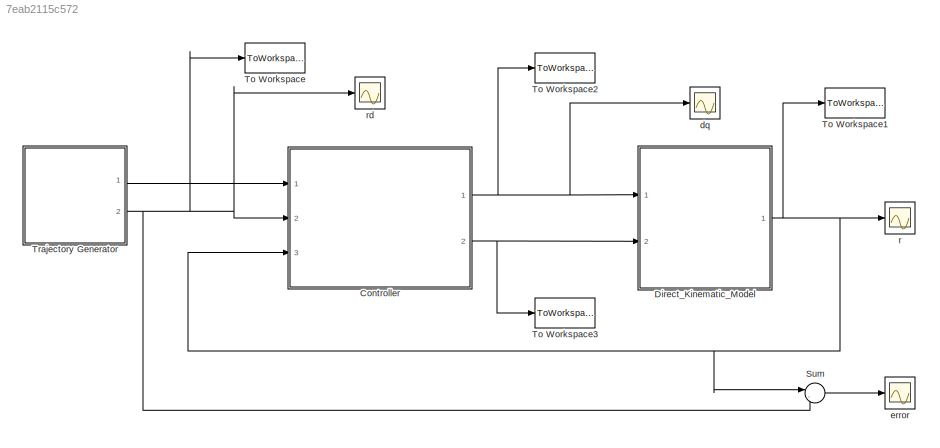
MODEL slx_7eab2115c572
KIND model
CONFIG AbsTol = auto
CONFIG FixedStep = 0.01
CONFIG MaxStep = auto
CONFIG MinStep = auto
CONFIG RelTol = 1e-3
CONFIG SampleTimeConstraint = Unconstrained
CONFIG Solver = ode3
CONFIG SolverMode = Auto
CONFIG SolverName = ode3
CONFIG StartTime = 0.0
CONFIG StopTime = tf
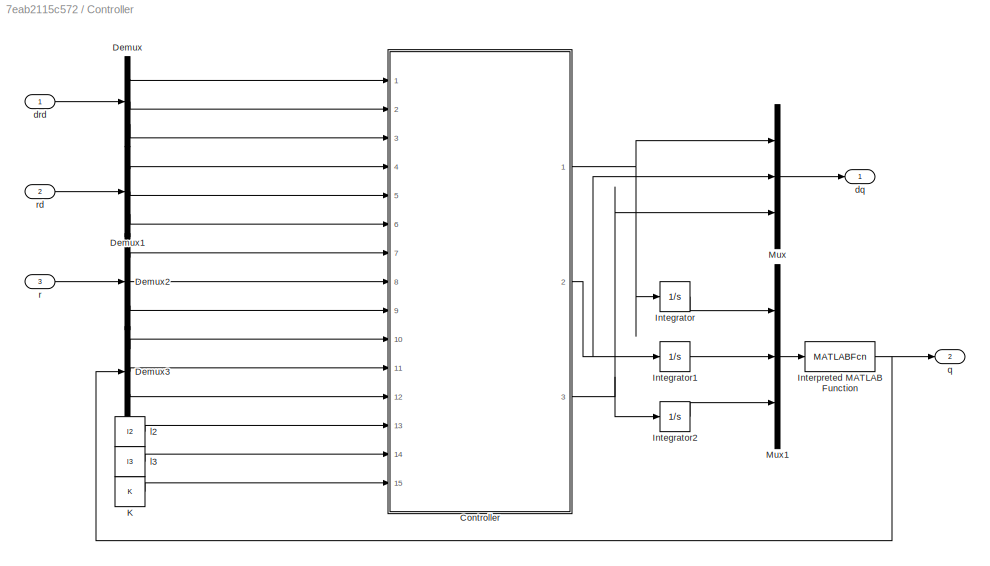
BLOCK [SubSystem] Controller
  Ports = [3, 2]
  RequestExecContextInheritance = off
  Variant = off
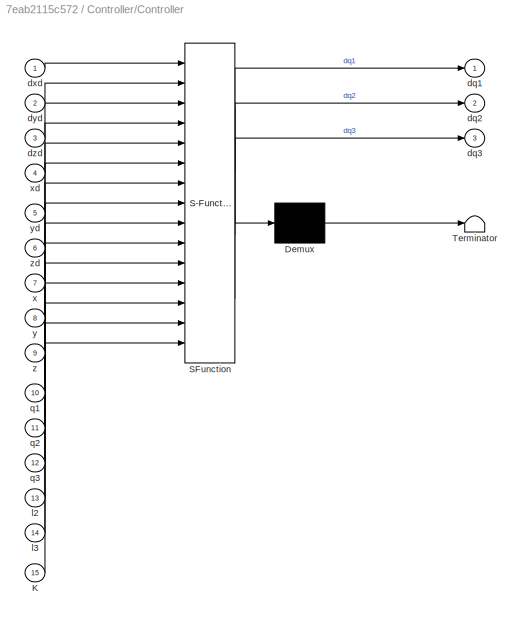
BLOCK [SubSystem] Controller/Controller
  ErrorFcn = Stateflow.Translate.translate
  PermitHierarchicalResolution = ExplicitOnly
  Ports = [15, 3]
  RequestExecContextInheritance = off
  SFBlockType = MATLAB Function
  TreatAsAtomicUnit = on
  Variant = off
BLOCK [Demux] Controller/Controller/ Demux 
  Outputs = 1
  Ports = [1, 1]
BLOCK [S-Function] Controller/Controller/ SFunction 
  EnableBusSupport = on
  FunctionName = sf_sfun
  PortCounts = [15 4]
  Ports = [15, 4]
  SFunctionDeploymentMode = off
  Tag = Stateflow S-Function kinematic_model_control 1
BLOCK [Terminator] Controller/Controller/ Terminator 
BLOCK [Inport] Controller/Controller/K
  IconDisplay = Port number
  Port = 15
BLOCK [Outport] Controller/Controller/dq1
  IconDisplay = Port number
BLOCK [Outport] Controller/Controller/dq2
  IconDisplay = Port number
  Port = 2
BLOCK [Outport] Controller/Controller/dq3
  IconDisplay = Port number
  Port = 3
BLOCK [Inport] Controller/Controller/dxd
  IconDisplay = Port number
BLOCK [Inport] Controller/Controller/dyd
  IconDisplay = Port number
  Port = 2
BLOCK [Inport] Controller/Controller/dzd
  IconDisplay = Port number
  Port = 3
BLOCK [Inport] Controller/Controller/l2
  IconDisplay = Port number
  Port = 13
BLOCK [Inport] Controller/Controller/l3
  IconDisplay = Port number
  Port = 14
BLOCK [Inport] Controller/Controller/q1
  IconDisplay = Port number
  Port = 10
BLOCK [Inport] Controller/Controller/q2
  IconDisplay = Port number
  Port = 11
BLOCK [Inport] Controller/Controller/q3
  IconDisplay = Port number
  Port = 12
BLOCK [Inport] Controller/Controller/x
  IconDisplay = Port number
  Port = 7
BLOCK [Inport] Controller/Controller/xd
  IconDisplay = Port number
  Port = 4
BLOCK [Inport] Controller/Controller/y
  IconDisplay = Port number
  Port = 8
BLOCK [Inport] Controller/Controller/yd
  IconDisplay = Port number
  Port = 5
BLOCK [Inport] Controller/Controller/z
  IconDisplay = Port number
  Port = 9
BLOCK [Inport] Controller/Controller/zd
  IconDisplay = Port number
  Port = 6
BLOCK [Demux] Controller/Demux
  DisplayOption = bar
  Outputs = 3
  Ports = [1, 3]
BLOCK [Demux] Controller/Demux1
  DisplayOption = bar
  Outputs = 3
  Ports = [1, 3]
BLOCK [Demux] Controller/Demux2
  DisplayOption = bar
  Outputs = 3
  Ports = [1, 3]
BLOCK [Demux] Controller/Demux3
  DisplayOption = bar
  Outputs = 3
  Ports = [1, 3]
BLOCK [Integrator] Controller/Integrator
  Ports = [1, 1]
BLOCK [Integrator] Controller/Integrator1
  InitialCondition = 0.5900
  Ports = [1, 1]
BLOCK [Integrator] Controller/Integrator2
  InitialCondition = 1.3181
  Ports = [1, 1]
BLOCK [MATLABFcn] Controller/Interpreted MATLAB Function
  MATLABFcn = atan2(sin(u),cos(u))
  Ports = [1, 1]
BLOCK [Constant] Controller/K
  Value = K
BLOCK [Mux] Controller/Mux
  DisplayOption = bar
  Inputs = 3
  Ports = [3, 1]
BLOCK [Mux] Controller/Mux1
  DisplayOption = bar
  Inputs = 3
  Ports = [3, 1]
BLOCK [Outport] Controller/dq
  IconDisplay = Port number
BLOCK [Inport] Controller/drd
  IconDisplay = Port number
BLOCK [Constant] Controller/l2
  Value = l2
BLOCK [Constant] Controller/l3
  Value = l3
BLOCK [Outport] Controller/q
  IconDisplay = Port number
  Port = 2
BLOCK [Inport] Controller/r
  IconDisplay = Port number
  Port = 3
BLOCK [Inport] Controller/rd
  IconDisplay = Port number
  Port = 2
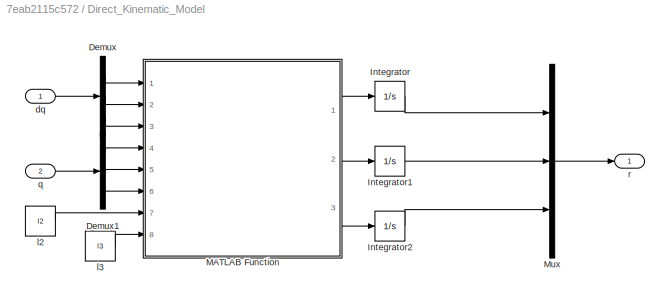
BLOCK [SubSystem] Direct_Kinematic_Model
  Ports = [2, 1]
  RequestExecContextInheritance = off
  Variant = off
BLOCK [Demux] Direct_Kinematic_Model/Demux
  DisplayOption = bar
  Outputs = 3
  Ports = [1, 3]
BLOCK [Demux] Direct_Kinematic_Model/Demux1
  DisplayOption = bar
  Outputs = 3
  Ports = [1, 3]
BLOCK [Integrator] Direct_Kinematic_Model/Integrator
  InitialCondition = x_i
  Ports = [1, 1]
BLOCK [Integrator] Direct_Kinematic_Model/Integrator1
  InitialCondition = y_i
  Ports = [1, 1]
BLOCK [Integrator] Direct_Kinematic_Model/Integrator2
  InitialCondition = z_i
  Ports = [1, 1]
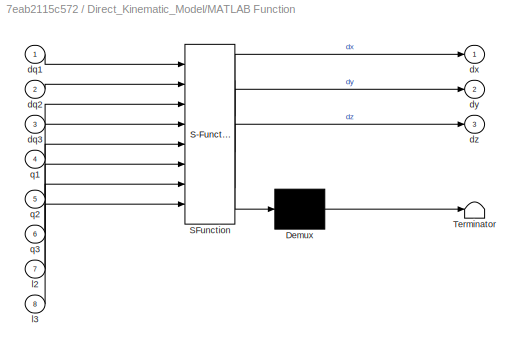
BLOCK [SubSystem] Direct_Kinematic_Model/MATLAB Function
  ErrorFcn = Stateflow.Translate.translate
  PermitHierarchicalResolution = ExplicitOnly
  Ports = [8, 3]
  RequestExecContextInheritance = off
  SFBlockType = MATLAB Function
  TreatAsAtomicUnit = on
  Variant = off
BLOCK [Demux] Direct_Kinematic_Model/MATLAB Function/ Demux 
  Outputs = 1
  Ports = [1, 1]
BLOCK [S-Function] Direct_Kinematic_Model/MATLAB Function/ SFunction 
  EnableBusSupport = on
  FunctionName = sf_sfun
  PortCounts = [8 4]
  Ports = [8, 4]
  SFunctionDeploymentMode = off
  Tag = Stateflow S-Function kinematic_model_control 2
BLOCK [Terminator] Direct_Kinematic_Model/MATLAB Function/ Terminator 
BLOCK [Inport] Direct_Kinematic_Model/MATLAB Function/dq1
  IconDisplay = Port number
BLOCK [Inport] Direct_Kinematic_Model/MATLAB Function/dq2
  IconDisplay = Port number
  Port = 2
BLOCK [Inport] Direct_Kinematic_Model/MATLAB Function/dq3
  IconDisplay = Port number
  Port = 3
BLOCK [Outport] Direct_Kinematic_Model/MATLAB Function/dx
  IconDisplay = Port number
BLOCK [Outport] Direct_Kinematic_Model/MATLAB Function/dy
  IconDisplay = Port number
  Port = 2
BLOCK [Outport] Direct_Kinematic_Model/MATLAB Function/dz
  IconDisplay = Port number
  Port = 3
BLOCK [Inport] Direct_Kinematic_Model/MATLAB Function/l2
  IconDisplay = Port number
  Port = 7
BLOCK [Inport] Direct_Kinematic_Model/MATLAB Function/l3
  IconDisplay = Port number
  Port = 8
BLOCK [Inport] Direct_Kinematic_Model/MATLAB Function/q1
  IconDisplay = Port number
  Port = 4
BLOCK [Inport] Direct_Kinematic_Model/MATLAB Function/q2
  IconDisplay = Port number
  Port = 5
BLOCK [Inport] Direct_Kinematic_Model/MATLAB Function/q3
  IconDisplay = Port number
  Port = 6
BLOCK [Mux] Direct_Kinematic_Model/Mux
  DisplayOption = bar
  Inputs = 3
  Ports = [3, 1]
BLOCK [Inport] Direct_Kinematic_Model/dq
  IconDisplay = Port number
BLOCK [Constant] Direct_Kinematic_Model/l2
  Value = l2
BLOCK [Constant] Direct_Kinematic_Model/l3
  Value = l3
BLOCK [Inport] Direct_Kinematic_Model/q
  IconDisplay = Port number
  Port = 2
BLOCK [Outport] Direct_Kinematic_Model/r
  IconDisplay = Port number
BLOCK [Sum] Sum
  IconShape = round
  InputSameDT = off
  Inputs = |-+
  OutDataTypeStr = Inherit: Inherit via internal rule
  Ports = [2, 1]
  SaturateOnIntegerOverflow = off
BLOCK [ToWorkspace] To Workspace
  FixptAsFi = on
  MaxDataPoints = inf
  Ports = [1]
  SampleTime = -1
  Save2DSignal = 3-D array (concatenate along third dimension)
  VariableName = rd
BLOCK [ToWorkspace] To Workspace1
  FixptAsFi = on
  MaxDataPoints = inf
  Ports = [1]
  SampleTime = -1
  Save2DSignal = 3-D array (concatenate along third dimension)
  VariableName = r
BLOCK [ToWorkspace] To Workspace2
  FixptAsFi = on
  MaxDataPoints = inf
  Ports = [1]
  SampleTime = -1
  Save2DSignal = 3-D array (concatenate along third dimension)
  VariableName = dq
BLOCK [ToWorkspace] To Workspace3
  FixptAsFi = on
  MaxDataPoints = inf
  Ports = [1]
  SampleTime = -1
  Save2DSignal = 3-D array (concatenate along third dimension)
  VariableName = q
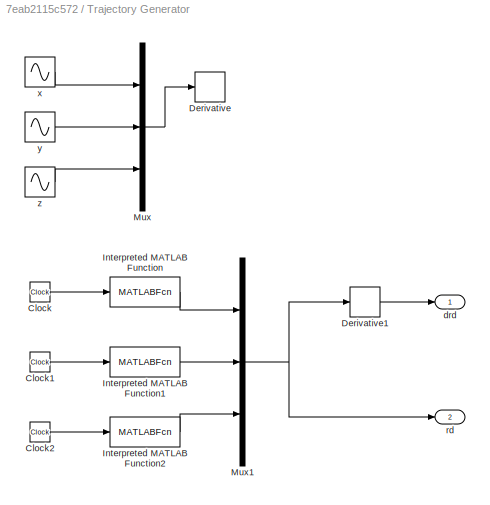
BLOCK [SubSystem] Trajectory Generator
  Ports = [0, 2]
  RequestExecContextInheritance = off
  Variant = off
BLOCK [Clock] Trajectory Generator/Clock
BLOCK [Clock] Trajectory Generator/Clock1
BLOCK [Clock] Trajectory Generator/Clock2
BLOCK [Derivative] Trajectory Generator/Derivative
BLOCK [Derivative] Trajectory Generator/Derivative1
BLOCK [MATLABFcn] Trajectory Generator/Interpreted MATLAB Function
  MATLABFcn = x_i + (x_f-x_i)*u/tf
  Ports = [1, 1]
BLOCK [MATLABFcn] Trajectory Generator/Interpreted MATLAB Function1
  MATLABFcn = y_i + (y_f-y_i)*u/tf
  Ports = [1, 1]
BLOCK [MATLABFcn] Trajectory Generator/Interpreted MATLAB Function2
  MATLABFcn = z_i + (z_f-z_i)*u/tf
  Ports = [1, 1]
BLOCK [Mux] Trajectory Generator/Mux
  Commented = on
  DisplayOption = bar
  Inputs = 3
  Ports = [3, 1]
BLOCK [Mux] Trajectory Generator/Mux1
  DisplayOption = bar
  Inputs = 3
  Ports = [3, 1]
BLOCK [Outport] Trajectory Generator/drd
  IconDisplay = Port number
BLOCK [Outport] Trajectory Generator/rd
  IconDisplay = Port number
  Port = 2
BLOCK [Sin] Trajectory Generator/x
  Amplitude = 0.4
  Commented = on
  Frequency = 0
  Phase = 22/14
  Ports = [0, 1]
  SampleTime = 0
BLOCK [Sin] Trajectory Generator/y
  Amplitude = 0.1
  Commented = on
  Frequency = 1/(2*22/7)
  Ports = [0, 1]
  SampleTime = 0
BLOCK [Sin] Trajectory Generator/z
  Amplitude = 0.1
  Commented = on
  Frequency = 1/(2*22/7)
  Phase = 22/14
  Ports = [0, 1]
  SampleTime = 0
BLOCK [Scope] dq
  Ports = [1]
  ScopeSpecificationString = C++SS(StrPVP('Location','[71, 78, 1362, 762]'),StrPVP('Open','off'),MxPVP('AxesTitles',24,'struct(''axes1'',''%<SignalLabel>'')'),MxPVP('ScopeGraphics',28,'struct(''FigureColor'',''[0.156862745098039 0.156862745098039 0.156862745098039]'',''AxesColor'',''[0 0 0]'',''AxesTickColor'',''[0.686274509803922 0.686274509803922 0.686274509803922]'',''LineColors'',''[1 1 0;1 0 1;0 1 1;1 0 0;0 1 0;0 0 1]'',...<+366ch>
BLOCK [Scope] error
  Ports = [1]
  ScopeSpecificationString = C++SS(StrPVP('Location','[76, 168, 1337, 762]'),StrPVP('Open','off'),MxPVP('AxesTitles',24,'struct(''axes1'',''%<SignalLabel>'')'),MxPVP('ScopeGraphics',28,'struct(''FigureColor'',''[0.156862745098039 0.156862745098039 0.156862745098039]'',''AxesColor'',''[0 0 0]'',''AxesTickColor'',''[0.686274509803922 0.686274509803922 0.686274509803922]'',''LineColors'',''[1 1 0;1 0 1;0 1 1;1 0 0;0 1 0;0 0 1]''...<+367ch>
BLOCK [Scope] r
  Ports = [1]
  ScopeSpecificationString = C++SS(StrPVP('Location','[71, 78, 1362, 762]'),StrPVP('Open','off'),MxPVP('AxesTitles',24,'struct(''axes1'',''%<SignalLabel>'')'),MxPVP('ScopeGraphics',28,'struct(''FigureColor'',''[0.156862745098039 0.156862745098039 0.156862745098039]'',''AxesColor'',''[0 0 0]'',''AxesTickColor'',''[0.686274509803922 0.686274509803922 0.686274509803922]'',''LineColors'',''[1 1 0;1 0 1;0 1 1;1 0 0;0 1 0;0 0 1]'',...<+334ch>
BLOCK [Scope] rd
  Ports = [1]
  ScopeSpecificationString = C++SS(StrPVP('Location','[71, 78, 1362, 762]'),StrPVP('Open','off'),MxPVP('AxesTitles',24,'struct(''axes1'',''%<SignalLabel>'')'),MxPVP('ScopeGraphics',28,'struct(''FigureColor'',''[0.156862745098039 0.156862745098039 0.156862745098039]'',''AxesColor'',''[0 0 0]'',''AxesTickColor'',''[0.686274509803922 0.686274509803922 0.686274509803922]'',''LineColors'',''[1 1 0;1 0 1;0 1 1;1 0 0;0 1 0;0 0 1]'',...<+366ch>
NET Controller/Controller:1 -> Controller/Integrator:1, Controller/Mux:1
NET Controller/Controller:2 -> Controller/Integrator1:1, Controller/Mux:2
NET Controller/Controller:3 -> Controller/Integrator2:1, Controller/Mux:3
LINE Controller/Demux1:1 -> Controller/Controller:4
LINE Controller/Demux1:2 -> Controller/Controller:5
LINE Controller/Demux1:3 -> Controller/Controller:6
LINE Controller/Demux2:1 -> Controller/Controller:7
LINE Controller/Demux2:2 -> Controller/Controller:8
LINE Controller/Demux2:3 -> Controller/Controller:9
LINE Controller/Demux3:1 -> Controller/Controller:10
LINE Controller/Demux3:2 -> Controller/Controller:11
LINE Controller/Demux3:3 -> Controller/Controller:12
LINE Controller/Demux:1 -> Controller/Controller:1
LINE Controller/Demux:2 -> Controller/Controller:2
LINE Controller/Demux:3 -> Controller/Controller:3
LINE Controller/Integrator1:1 -> Controller/Mux1:2
LINE Controller/Integrator2:1 -> Controller/Mux1:3
LINE Controller/Integrator:1 -> Controller/Mux1:1
NET Controller/Interpreted MATLAB Function:1 -> Controller/Demux3:1, Controller/q:1
LINE Controller/K:1 -> Controller/Controller:15
LINE Controller/Mux1:1 -> Controller/Interpreted MATLAB Function:1
LINE Controller/Mux:1 -> Controller/dq:1
LINE Controller/drd:1 -> Controller/Demux:1
LINE Controller/l2:1 -> Controller/Controller:13
LINE Controller/l3:1 -> Controller/Controller:14
LINE Controller/r:1 -> Controller/Demux2:1
LINE Controller/rd:1 -> Controller/Demux1:1
NET Controller:1 -> Direct_Kinematic_Model:1, To Workspace2:1, dq:1
NET Controller:2 -> Direct_Kinematic_Model:2, To Workspace3:1
LINE Direct_Kinematic_Model/Demux1:1 -> Direct_Kinematic_Model/MATLAB Function:4
LINE Direct_Kinematic_Model/Demux1:2 -> Direct_Kinematic_Model/MATLAB Function:5
LINE Direct_Kinematic_Model/Demux1:3 -> Direct_Kinematic_Model/MATLAB Function:6
LINE Direct_Kinematic_Model/Demux:1 -> Direct_Kinematic_Model/MATLAB Function:1
LINE Direct_Kinematic_Model/Demux:2 -> Direct_Kinematic_Model/MATLAB Function:2
LINE Direct_Kinematic_Model/Demux:3 -> Direct_Kinematic_Model/MATLAB Function:3
LINE Direct_Kinematic_Model/Integrator1:1 -> Direct_Kinematic_Model/Mux:2
LINE Direct_Kinematic_Model/Integrator2:1 -> Direct_Kinematic_Model/Mux:3
LINE Direct_Kinematic_Model/Integrator:1 -> Direct_Kinematic_Model/Mux:1
LINE Direct_Kinematic_Model/MATLAB Function:1 -> Direct_Kinematic_Model/Integrator:1
LINE Direct_Kinematic_Model/MATLAB Function:2 -> Direct_Kinematic_Model/Integrator1:1
LINE Direct_Kinematic_Model/MATLAB Function:3 -> Direct_Kinematic_Model/Integrator2:1
LINE Direct_Kinematic_Model/Mux:1 -> Direct_Kinematic_Model/r:1
LINE Direct_Kinematic_Model/dq:1 -> Direct_Kinematic_Model/Demux:1
LINE Direct_Kinematic_Model/l2:1 -> Direct_Kinematic_Model/MATLAB Function:7
LINE Direct_Kinematic_Model/l3:1 -> Direct_Kinematic_Model/MATLAB Function:8
LINE Direct_Kinematic_Model/q:1 -> Direct_Kinematic_Model/Demux1:1
NET Direct_Kinematic_Model:1 -> Controller:3, Sum:1, To Workspace1:1, r:1
LINE Sum:1 -> error:1
LINE Trajectory Generator/Clock1:1 -> Trajectory Generator/Interpreted MATLAB Function1:1
LINE Trajectory Generator/Clock2:1 -> Trajectory Generator/Interpreted MATLAB Function2:1
LINE Trajectory Generator/Clock:1 -> Trajectory Generator/Interpreted MATLAB Function:1
LINE Trajectory Generator/Derivative1:1 -> Trajectory Generator/drd:1
LINE Trajectory Generator/Interpreted MATLAB Function1:1 -> Trajectory Generator/Mux1:2
LINE Trajectory Generator/Interpreted MATLAB Function2:1 -> Trajectory Generator/Mux1:3
LINE Trajectory Generator/Interpreted MATLAB Function:1 -> Trajectory Generator/Mux1:1
NET Trajectory Generator/Mux1:1 -> Trajectory Generator/Derivative1:1, Trajectory Generator/rd:1
LINE Trajectory Generator/Mux:1 -> Trajectory Generator/Derivative:1
LINE Trajectory Generator/x:1 -> Trajectory Generator/Mux:1
LINE Trajectory Generator/y:1 -> Trajectory Generator/Mux:2
LINE Trajectory Generator/z:1 -> Trajectory Generator/Mux:3
LINE Trajectory Generator:1 -> Controller:1
NET Trajectory Generator:2 -> Controller:2, Sum:2, To Workspace:1, rd:1
note: NET lines group one-source signal fan-out (src -> all destinations, sorted); 1:1 wires keep LINE
CHART Controller/Controller states=1 transitions=1
  STATE_LABEL 'eML_blk_kernel()'
  STATE_LABEL 'SCRIPT:\nfunction [dq1, dq2, dq3] = fcn(dxd, dyd, dzd, xd, yd, zd, x, y, z, q1, q2, q3, l2, l3, K)\n%#codegen\n\nJ = [ 0,            l3*cos(q2 + q3) + l2*cos(q2),          l3*cos(q2 + q3);\n  cos(q1)*(l3*cos(q2 + q3) + l2*cos(q2)), -sin(q1)*(l3*sin(q2 + q3) + l2*sin(q2)), -l3*sin(q2 + q3)*sin(q1);\n  sin(q1)*(l3*cos(q2 + q3) + l2*cos(q2)),  cos(q1)*(l3*sin(q2 + q3) + l2*sin(q2)),  l3*sin(q2 + q3)*cos(q1...<+122ch>'
CHART Direct_Kinematic_Model/MATLAB Function states=1 transitions=1
  STATE_LABEL 'eML_blk_kernel()'
  STATE_LABEL 'SCRIPT:\nfunction [dx,dy,dz] = fcn(dq1,dq2,dq3, q1, q2, q3, l2, l3)\n%#codegen\n\n\ndr =[ 0,            l3*cos(q2 + q3) + l2*cos(q2),          l3*cos(q2 + q3);\n  cos(q1)*(l3*cos(q2 + q3) + l2*cos(q2)), -sin(q1)*(l3*sin(q2 + q3) + l2*sin(q2)), -l3*sin(q2 + q3)*sin(q1);\n  sin(q1)*(l3*cos(q2 + q3) + l2*cos(q2)),  cos(q1)*(l3*sin(q2 + q3) + l2*sin(q2)),  l3*sin(q2 + q3)*cos(q1)]...\n     *[dq1; dq2; dq3];\n\n...<+40ch>'
